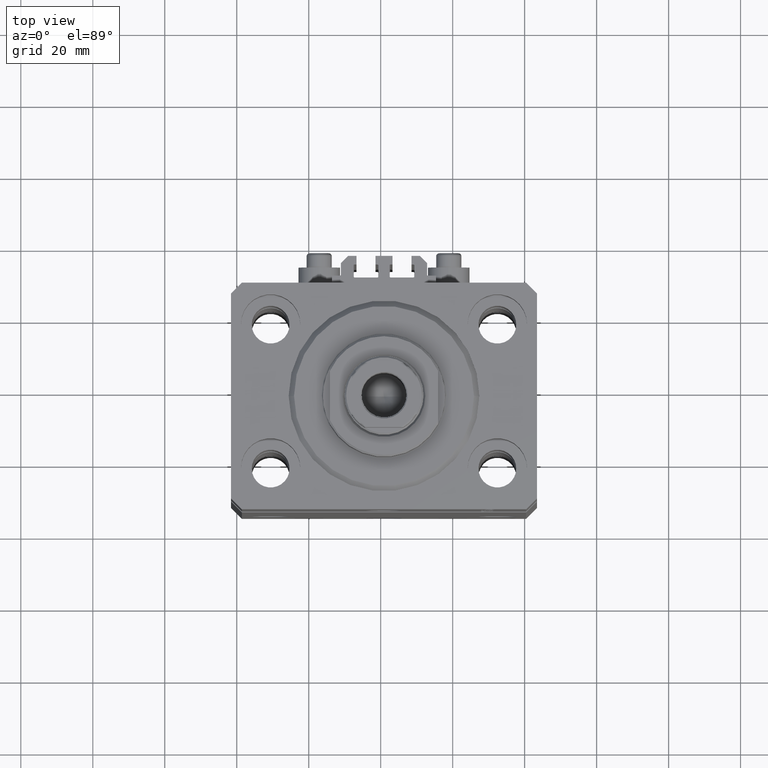
[diagram: clean part render]
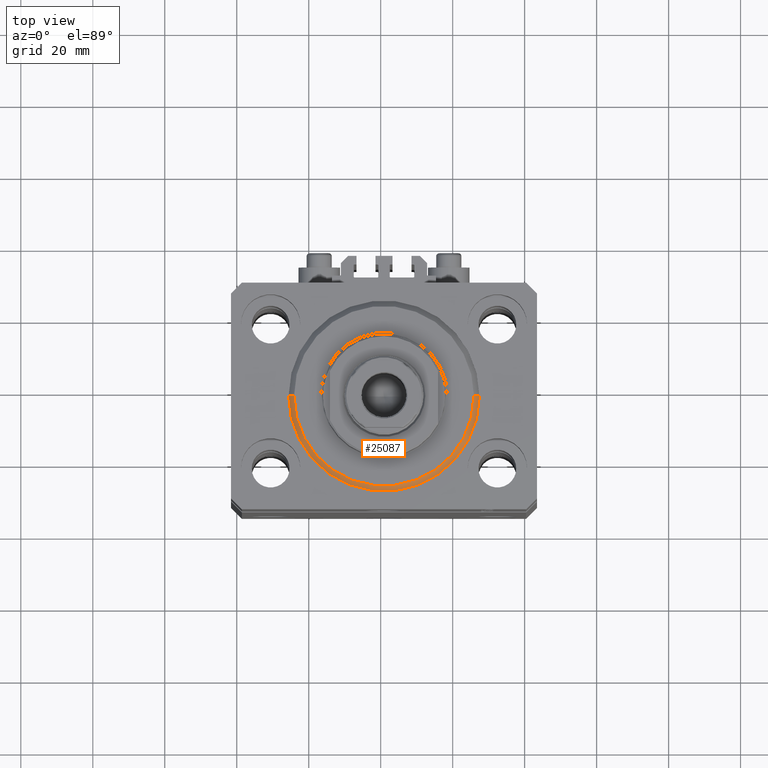
[diagram: same view with one face highlighted and labeled with its STEP entity id]
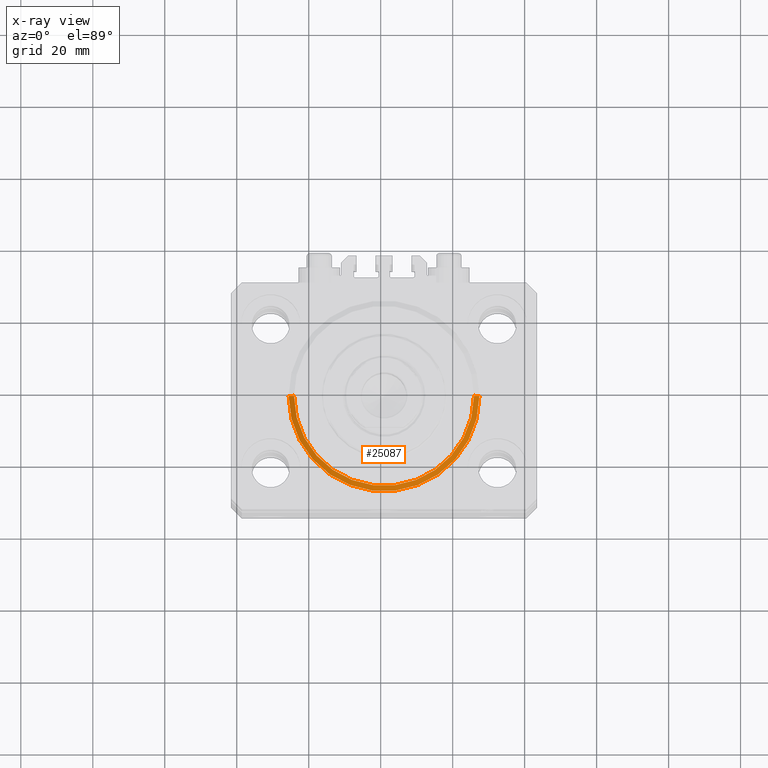
[diagram: x-ray of the same camera — body ghosted, the highlighted face saturated]
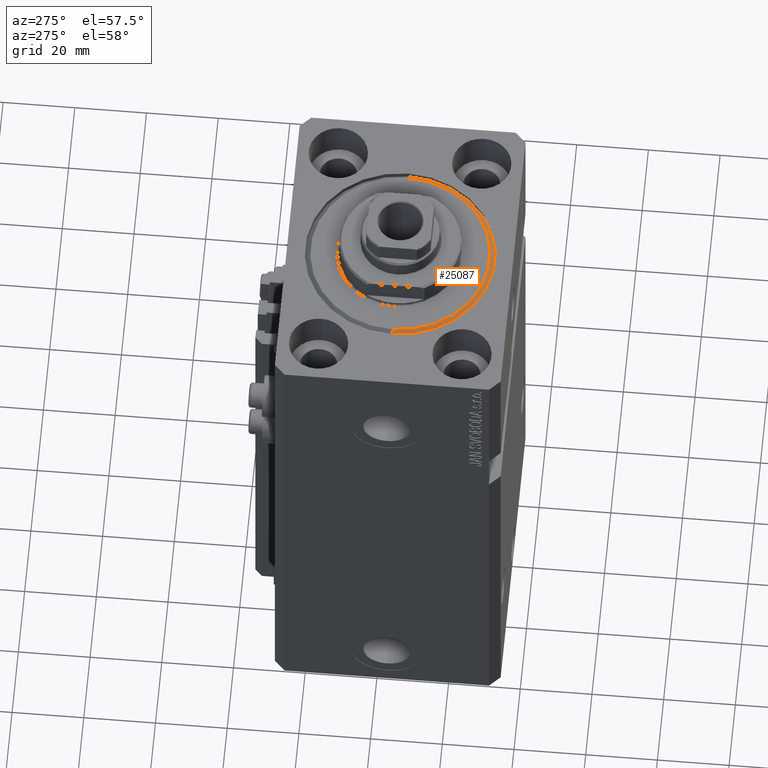
[diagram: same view with one face highlighted and labeled with its STEP entity id]
A machine part, top view. The second image highlights one B-rep face of the part: STEP entity #25087.
The next image is the same camera in x-ray: the body ghosted, the highlighted face saturated — about 0% of this face is hidden behind the body in this view.
A second angle (auxiliary view) of the same face is appended — the face is thin or edge-on in the first view.
In plain terms, the highlighted conical surface has half-angle 45 deg.
Its self-contained STEP definition (entity closure, byte-faithful):
#673 = CARTESIAN_POINT ( 'NONE',  ( 26.50000000000000355, 0.000000000000000000, 1.500000000000018652 ) ) ;
#1081 = AXIS2_PLACEMENT_3D ( 'NONE', #41079, #44998, #30245 ) ;
#1439 = CARTESIAN_POINT ( 'NONE',  ( -24.99999999999998224, 3.153465507804433615E-15, 0.000000000000000000 ) ) ;
#1912 = CARTESIAN_POINT ( 'NONE',  ( -26.50000000000000355, 3.245314017740486554E-15, 1.500000000000018652 ) ) ;
#2709 = VECTOR ( 'NONE', #15666, 1000.000000000000000 ) ;
#3435 = CIRCLE ( 'NONE', #1081, 24.99999999999998224 ) ;
#5328 = ORIENTED_EDGE ( 'NONE', *, *, #20413, .F. ) ;
#5844 = LINE ( 'NONE', #1912, #43795 ) ;
#6673 = CIRCLE ( 'NONE', #36534, 26.50000000000000355 ) ;
#7918 = ORIENTED_EDGE ( 'NONE', *, *, #10724, .F. ) ;
#9289 = EDGE_CURVE ( 'NONE', #32321, #14065, #34364, .T. ) ;
#9685 = VERTEX_POINT ( 'NONE', #36182 ) ;
#10724 = EDGE_CURVE ( 'NONE', #9685, #14065, #6673, .T. ) ;
#13887 = ORIENTED_EDGE ( 'NONE', *, *, #31597, .F. ) ;
#14050 = FACE_OUTER_BOUND ( 'NONE', #43914, .T. ) ;
#14065 = VERTEX_POINT ( 'NONE', #46485 ) ;
#15666 = DIRECTION ( 'NONE',  ( 0.7071067811865483499, 0.000000000000000000, 0.7071067811865466846 ) ) ;
#16664 = DIRECTION ( 'NONE',  ( -0.7071067811865483499, 8.659560562354942719E-17, 0.7071067811865466846 ) ) ;
#19225 = AXIS2_PLACEMENT_3D ( 'NONE', #39389, #47761, #43817 ) ;
#20413 = EDGE_CURVE ( 'NONE', #32321, #32016, #3435, .T. ) ;
#22765 = ORIENTED_EDGE ( 'NONE', *, *, #9289, .T. ) ;
#25087 = ADVANCED_FACE ( 'NONE', ( #14050 ), #39659, .T. ) ;
#27042 = DIRECTION ( 'NONE',  ( 1.000000000000000000, 0.000000000000000000, 0.000000000000000000 ) ) ;
#27293 = DIRECTION ( 'NONE',  ( -0.000000000000000000, -0.000000000000000000, 1.000000000000000000 ) ) ;
#30245 = DIRECTION ( 'NONE',  ( 1.000000000000000000, 0.000000000000000000, 0.000000000000000000 ) ) ;
#31597 = EDGE_CURVE ( 'NONE', #32016, #9685, #5844, .T. ) ;
#32016 = VERTEX_POINT ( 'NONE', #1439 ) ;
#32321 = VERTEX_POINT ( 'NONE', #36852 ) ;
#34364 = LINE ( 'NONE', #673, #2709 ) ;
#34422 = CARTESIAN_POINT ( 'NONE',  ( 0.000000000000000000, 0.000000000000000000, 1.500000000000018652 ) ) ;
#36182 = CARTESIAN_POINT ( 'NONE',  ( -26.50000000000000355, 0.000000000000000000, 1.500000000000018652 ) ) ;
#36534 = AXIS2_PLACEMENT_3D ( 'NONE', #34422, #27293, #27042 ) ;
#36852 = CARTESIAN_POINT ( 'NONE',  ( 24.99999999999998224, 0.000000000000000000, 0.000000000000000000 ) ) ;
#39389 = CARTESIAN_POINT ( 'NONE',  ( 0.000000000000000000, 0.000000000000000000, 1.500000000000018652 ) ) ;
#39659 = CONICAL_SURFACE ( 'NONE', #19225, 26.50000000000000355, 0.7853981633974495002 ) ;
#41079 = CARTESIAN_POINT ( 'NONE',  ( 0.000000000000000000, 0.000000000000000000, 0.000000000000000000 ) ) ;
#43795 = VECTOR ( 'NONE', #16664, 1000.000000000000000 ) ;
#43817 = DIRECTION ( 'NONE',  ( 1.000000000000000000, 0.000000000000000000, 0.000000000000000000 ) ) ;
#43914 = EDGE_LOOP ( 'NONE', ( #13887, #5328, #22765, #7918 ) ) ;
#44998 = DIRECTION ( 'NONE',  ( -0.000000000000000000, -0.000000000000000000, -1.000000000000000000 ) ) ;
#46485 = CARTESIAN_POINT ( 'NONE',  ( 26.50000000000000355, 3.245314017740486554E-15, 1.500000000000018652 ) ) ;
#47761 = DIRECTION ( 'NONE',  ( -0.000000000000000000, -0.000000000000000000, 1.000000000000000000 ) ) ;